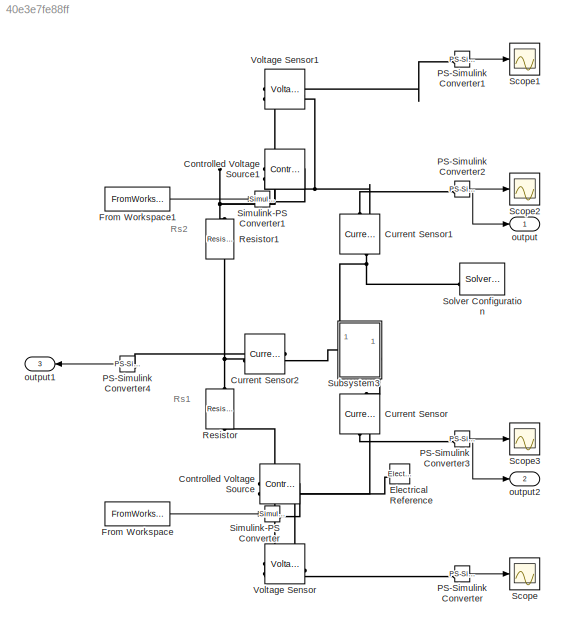
MODEL slx_40e3e7fe88ff
KIND model
CONFIG AbsTol = auto
CONFIG EnableMultiTasking = off
CONFIG FixedStep = auto
CONFIG MaxStep = auto
CONFIG MinStep = auto
CONFIG RelTol = 1e-3
CONFIG SampleTimeConstraint = Unconstrained
CONFIG SolverName = VariableStepAuto
CONFIG StartTime = 0.0
CONFIG StopTime = 3.33e-3
BLOCK [Reference] Controlled Voltage Source  REF=fl_lib/Electrical/Electrical Sources/Controlled Voltage
Source
  NameLocation = top
  SourceBlock = fl_lib/Electrical/Electrical Sources/Controlled Voltage\nSource
  SourceType = Controlled Voltage\nSource
BLOCK [Reference] Controlled Voltage Source1  REF=fl_lib/Electrical/Electrical Sources/Controlled Voltage
Source
  NameLocation = top
  SourceBlock = fl_lib/Electrical/Electrical Sources/Controlled Voltage\nSource
  SourceType = Controlled Voltage\nSource
BLOCK [Reference] Current Sensor  REF=fl_lib/Electrical/Electrical Sensors/Current Sensor
  NameLocation = left
  SourceBlock = fl_lib/Electrical/Electrical Sensors/Current Sensor
  SourceType = Current Sensor
BLOCK [Reference] Current Sensor1  REF=fl_lib/Electrical/Electrical Sensors/Current Sensor
  NameLocation = right
  SourceBlock = fl_lib/Electrical/Electrical Sensors/Current Sensor
  SourceType = Current Sensor
BLOCK [Reference] Current Sensor2  REF=fl_lib/Electrical/Electrical Sensors/Current Sensor
  NameLocation = top
  SourceBlock = fl_lib/Electrical/Electrical Sensors/Current Sensor
  SourceType = Current Sensor
BLOCK [Reference] Electrical Reference  REF=fl_lib/Electrical/Electrical Elements/Electrical Reference
  NameLocation = top
  SourceBlock = fl_lib/Electrical/Electrical Elements/Electrical Reference
  SourceType = Electrical Reference
BLOCK [FromWorkspace] From Workspace
  VariableName = Vbe
BLOCK [FromWorkspace] From Workspace1
  VariableName = Vbc
BLOCK [Reference] PS-Simulink Converter  REF=nesl_utility/PS-Simulink
Converter
  SourceBlock = nesl_utility/PS-Simulink\nConverter
  SourceType = PS-Simulink\nConverter
BLOCK [Reference] PS-Simulink Converter1  REF=nesl_utility/PS-Simulink
Converter
  SourceBlock = nesl_utility/PS-Simulink\nConverter
  SourceType = PS-Simulink\nConverter
BLOCK [Reference] PS-Simulink Converter2  REF=nesl_utility/PS-Simulink
Converter
  SourceBlock = nesl_utility/PS-Simulink\nConverter
  SourceType = PS-Simulink\nConverter
BLOCK [Reference] PS-Simulink Converter3  REF=nesl_utility/PS-Simulink
Converter
  SourceBlock = nesl_utility/PS-Simulink\nConverter
  SourceType = PS-Simulink\nConverter
BLOCK [Reference] PS-Simulink Converter4  REF=nesl_utility/PS-Simulink
Converter
  NameLocation = top
  SourceBlock = nesl_utility/PS-Simulink\nConverter
  SourceType = PS-Simulink\nConverter
BLOCK [Reference] Resistor  REF=fl_lib/Electrical/Electrical Elements/Resistor
  NameLocation = left
  SourceBlock = fl_lib/Electrical/Electrical Elements/Resistor
  SourceType = Resistor
BLOCK [Reference] Resistor1  REF=fl_lib/Electrical/Electrical Elements/Resistor
  NameLocation = right
  SourceBlock = fl_lib/Electrical/Electrical Elements/Resistor
  SourceType = Resistor
BLOCK [Scope] Scope
  Floating = off
  NumInputPorts = 1
  ScopeSpecificationString = Simulink.scopes.TimeScopeBlockCfg('CurrentConfiguration', extmgr.ConfigurationSet(extmgr.Configuration('Core','General UI',true),extmgr.Configuration('Core','Source UI',true),extmgr.Configuration('Sources','WiredSimulink',true),extmgr.Configuration('Visuals','Time Domain',true,'SerializedDisplays',{struct('MinYLimReal','-0.83302','MaxYLimReal','-0.72785','YLabelReal','','MinYLimMag','0.00000','Max...<+1692ch>
BLOCK [Scope] Scope1
  Floating = off
  NumInputPorts = 1
  ScopeSpecificationString = Simulink.scopes.TimeScopeBlockCfg('CurrentConfiguration', extmgr.ConfigurationSet(extmgr.Configuration('Core','General UI',true),extmgr.Configuration('Core','Source UI',true),extmgr.Configuration('Sources','WiredSimulink',true,'DataLoggingVariableName','ScopeData1'),extmgr.Configuration('Visuals','Time Domain',true,'SerializedDisplays',{struct('MinYLimReal','-10.97998','MaxYLimReal','-8.97998','YL...<+1436ch>
BLOCK [Scope] Scope2
  Floating = off
  NumInputPorts = 1
  ScopeSpecificationString = Simulink.scopes.TimeScopeBlockCfg('CurrentConfiguration', extmgr.ConfigurationSet(extmgr.Configuration('Core','General UI',true),extmgr.Configuration('Core','Source UI',true),extmgr.Configuration('Sources','WiredSimulink',true,'DataLoggingVariableName','ScopeData2'),extmgr.Configuration('Visuals','Time Domain',true,'SerializedDisplays',{struct('MinYLimReal','-45.70413','MaxYLimReal','411.33719','Y...<+1450ch>
BLOCK [Scope] Scope3
  Floating = off
  NumInputPorts = 1
  ScopeSpecificationString = Simulink.scopes.TimeScopeBlockCfg('CurrentConfiguration', extmgr.ConfigurationSet(extmgr.Configuration('Core','General UI',true),extmgr.Configuration('Core','Source UI',true),extmgr.Configuration('Sources','WiredSimulink',true,'DataLoggingVariableName','ScopeData3'),extmgr.Configuration('Visuals','Time Domain',true,'SerializedDisplays',{struct('MinYLimReal','-1.10691','MaxYLimReal','9.96223','YLab...<+1440ch>
BLOCK [Reference] Simulink-PS Converter  REF=nesl_utility/Simulink-PS
Converter
  SourceBlock = nesl_utility/Simulink-PS\nConverter
  SourceType = Simulink-PS\nConverter
BLOCK [Reference] Simulink-PS Converter1  REF=nesl_utility/Simulink-PS
Converter
  SourceBlock = nesl_utility/Simulink-PS\nConverter
  SourceType = Simulink-PS\nConverter
BLOCK [Reference] Solver Configuration  REF=nesl_utility/Solver
Configuration
  SourceBlock = nesl_utility/Solver\nConfiguration
  SourceType = Solver\nConfiguration
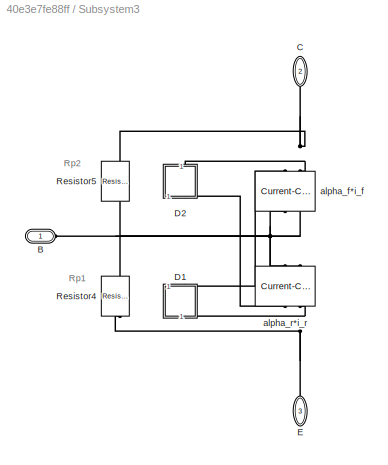
BLOCK [SubSystem] Subsystem3
  PortSchema = {"entries":[{"content":{"sides":[{"content":{"connectorIds":["LConn1"]},"type":"ConnectorPlacement.EquallySpacedRectSide","uuid":"e7d2ad01-b729-4278-a2af-615928332c77"},{"content":{"side":"RIGHT"},"type":"ConnectorPlacement.EquallySpacedRectSide","uuid":"6c8f5083-1d74-476b-8fc8-74f7e6a90163"},{"content":{"connectorIds":["LConn2"],"side":"TOP"},"type":"ConnectorPlacement.EquallySpacedRectSide","uui...<+379ch>
BLOCK [PMIOPort] Subsystem3/B
  Side = Left
BLOCK [PMIOPort] Subsystem3/C
  NameLocation = left
  Port = 2
  Side = Left
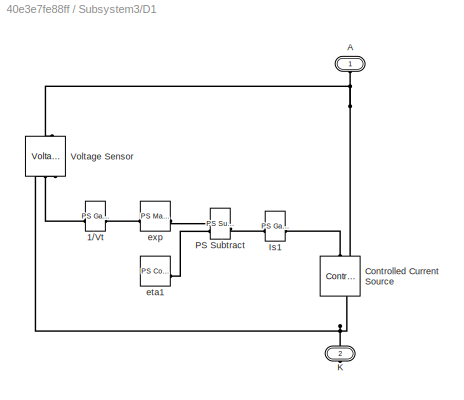
BLOCK [SubSystem] Subsystem3/D1
  NameLocation = left
BLOCK [Reference] Subsystem3/D1/1//Vt  REF=fl_lib/Physical Signals/Functions/PS Gain
  SourceBlock = fl_lib/Physical Signals/Functions/PS Gain
  SourceType = PS Gain
BLOCK [PMIOPort] Subsystem3/D1/A
  NameLocation = right
  Side = Left
BLOCK [Reference] Subsystem3/D1/Controlled Current Source  REF=fl_lib/Electrical/Electrical Sources/Controlled Current
Source
  NameLocation = right
  SourceBlock = fl_lib/Electrical/Electrical Sources/Controlled Current\nSource
  SourceType = Controlled Current\nSource
BLOCK [Reference] Subsystem3/D1/Is1  REF=fl_lib/Physical Signals/Functions/PS Gain
  SourceBlock = fl_lib/Physical Signals/Functions/PS Gain
  SourceType = PS Gain
BLOCK [PMIOPort] Subsystem3/D1/K
  NameLocation = right
  Port = 2
  Side = Right
BLOCK [Reference] Subsystem3/D1/PS Subtract  REF=fl_lib/Physical Signals/Functions/PS Subtract
  NameLocation = top
  SourceBlock = fl_lib/Physical Signals/Functions/PS Subtract
  SourceType = PS Subtract
BLOCK [Reference] Subsystem3/D1/Voltage Sensor  REF=fl_lib/Electrical/Electrical Sensors/Voltage Sensor
  NameLocation = right
  SourceBlock = fl_lib/Electrical/Electrical Sensors/Voltage Sensor
  SourceType = Voltage Sensor
BLOCK [Reference] Subsystem3/D1/eta1  REF=fl_lib/Physical Signals/Sources/PS Constant
  SourceBlock = fl_lib/Physical Signals/Sources/PS Constant
  SourceType = PS Constant
BLOCK [Reference] Subsystem3/D1/exp  REF=fl_lib/Physical Signals/Functions/PS Math Function
  SourceBlock = fl_lib/Physical Signals/Functions/PS Math Function
  SourceType = PS Math Function
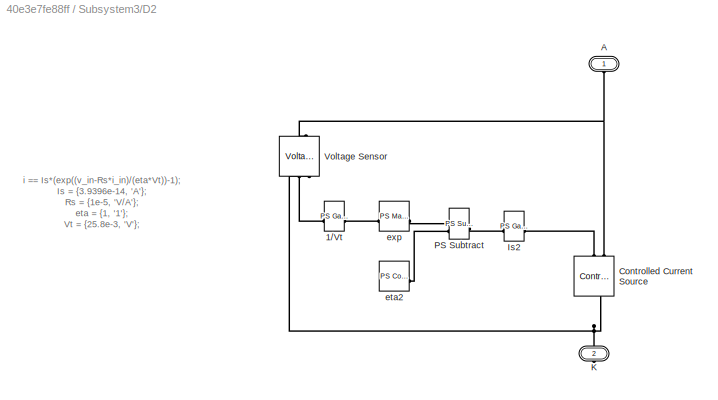
BLOCK [SubSystem] Subsystem3/D2
  NameLocation = left
BLOCK [Reference] Subsystem3/D2/1//Vt  REF=fl_lib/Physical Signals/Functions/PS Gain
  SourceBlock = fl_lib/Physical Signals/Functions/PS Gain
  SourceType = PS Gain
BLOCK [PMIOPort] Subsystem3/D2/A
  NameLocation = right
  Side = Left
BLOCK [Reference] Subsystem3/D2/Controlled Current Source  REF=fl_lib/Electrical/Electrical Sources/Controlled Current
Source
  NameLocation = right
  SourceBlock = fl_lib/Electrical/Electrical Sources/Controlled Current\nSource
  SourceType = Controlled Current\nSource
BLOCK [Reference] Subsystem3/D2/Is2  REF=fl_lib/Physical Signals/Functions/PS Gain
  SourceBlock = fl_lib/Physical Signals/Functions/PS Gain
  SourceType = PS Gain
BLOCK [PMIOPort] Subsystem3/D2/K
  NameLocation = right
  Port = 2
  Side = Right
BLOCK [Reference] Subsystem3/D2/PS Subtract  REF=fl_lib/Physical Signals/Functions/PS Subtract
  NameLocation = top
  SourceBlock = fl_lib/Physical Signals/Functions/PS Subtract
  SourceType = PS Subtract
BLOCK [Reference] Subsystem3/D2/Voltage Sensor  REF=fl_lib/Electrical/Electrical Sensors/Voltage Sensor
  NameLocation = right
  SourceBlock = fl_lib/Electrical/Electrical Sensors/Voltage Sensor
  SourceType = Voltage Sensor
BLOCK [Reference] Subsystem3/D2/eta2  REF=fl_lib/Physical Signals/Sources/PS Constant
  SourceBlock = fl_lib/Physical Signals/Sources/PS Constant
  SourceType = PS Constant
BLOCK [Reference] Subsystem3/D2/exp  REF=fl_lib/Physical Signals/Functions/PS Math Function
  SourceBlock = fl_lib/Physical Signals/Functions/PS Math Function
  SourceType = PS Math Function
BLOCK [PMIOPort] Subsystem3/E
  NameLocation = right
  Port = 3
  Side = Right
BLOCK [Reference] Subsystem3/Resistor4  REF=fl_lib/Electrical/Electrical Elements/Resistor
  NameLocation = left
  SourceBlock = fl_lib/Electrical/Electrical Elements/Resistor
  SourceType = Resistor
BLOCK [Reference] Subsystem3/Resistor5  REF=fl_lib/Electrical/Electrical Elements/Resistor
  NameLocation = left
  SourceBlock = fl_lib/Electrical/Electrical Elements/Resistor
  SourceType = Resistor
BLOCK [Reference] Subsystem3/alpha_f*i_f  REF=fl_lib/Electrical/Electrical Sources/Current-Controlled
Current Source
  NameLocation = right
  SourceBlock = fl_lib/Electrical/Electrical Sources/Current-Controlled\nCurrent Source
  SourceType = Current-Controlled\nCurrent Source
BLOCK [Reference] Subsystem3/alpha_r*i_r  REF=fl_lib/Electrical/Electrical Sources/Current-Controlled
Current Source
  NameLocation = right
  SourceBlock = fl_lib/Electrical/Electrical Sources/Current-Controlled\nCurrent Source
  SourceType = Current-Controlled\nCurrent Source
BLOCK [Reference] Voltage Sensor  REF=fl_lib/Electrical/Electrical Sensors/Voltage Sensor
  NameLocation = top
  SourceBlock = fl_lib/Electrical/Electrical Sensors/Voltage Sensor
  SourceType = Voltage Sensor
BLOCK [Reference] Voltage Sensor1  REF=fl_lib/Electrical/Electrical Sensors/Voltage Sensor
  NameLocation = top
  SourceBlock = fl_lib/Electrical/Electrical Sensors/Voltage Sensor
  SourceType = Voltage Sensor
BLOCK [Outport] output
  IconDisplay = Signal name
  SignalName = Ibc
BLOCK [Outport] output1
  IconDisplay = Signal name
  NameLocation = top
  Port = 3
  SignalName = Ib
BLOCK [Outport] output2
  IconDisplay = Signal name
  Port = 2
  SignalName = Ibe
ANNOTATION (root): Rs1
ANNOTATION (root): Rs2
ANNOTATION Subsystem3: Rp1
ANNOTATION Subsystem3: Rp2
ANNOTATION Subsystem3/D2: i == Is*(exp((v_in-Rs*i_in)/(eta*Vt))-1); Is = {3.9396e-14, 'A' }; Rs = {1e-5, 'V/A' }; eta = {1, '1' }; Vt = {25.8e-3, 'V' };
LINE From Workspace1:1 -> Simulink-PS Converter1:1
LINE From Workspace:1 -> Simulink-PS Converter:1
LINE PS-Simulink Converter1:1 -> Scope1:1
NET PS-Simulink Converter2:1 -> Scope2:1, output:1
NET PS-Simulink Converter3:1 -> Scope3:1, output2:1
LINE PS-Simulink Converter4:1 -> output1:1
LINE PS-Simulink Converter:1 -> Scope:1
PNET net1: Controlled Voltage Source1:LConn1 -- Resistor1:RConn1 -- Voltage Sensor1:LConn1
PLINE Controlled Voltage Source1:RConn1 -- Simulink-PS Converter1:RConn1
PNET net2: Controlled Voltage Source1:RConn2 -- Current Sensor1:RConn2 -- Voltage Sensor1:RConn2
PNET net3: Controlled Voltage Source:LConn1 -- Resistor:RConn1 -- Voltage Sensor:LConn1
PLINE Controlled Voltage Source:RConn1 -- Simulink-PS Converter:RConn1
PNET net4: Controlled Voltage Source:RConn2 -- Current Sensor:RConn2 -- Electrical Reference:LConn1 -- Voltage Sensor:RConn2
PNET net5: Current Sensor1:LConn1 -- Solver Configuration:RConn1 -- Subsystem3:LConn2
PLINE Current Sensor1:RConn1 -- PS-Simulink Converter2:LConn1
PLINE Current Sensor2:LConn1 -- Subsystem3:LConn1
PLINE Current Sensor2:RConn1 -- PS-Simulink Converter4:LConn1
PNET net6: Current Sensor2:RConn2 -- Resistor1:LConn1 -- Resistor:LConn1
PLINE Current Sensor:LConn1 -- Subsystem3:RConn1
PLINE Current Sensor:RConn1 -- PS-Simulink Converter3:LConn1
PLINE PS-Simulink Converter1:LConn1 -- Voltage Sensor1:RConn1
PLINE PS-Simulink Converter:LConn1 -- Voltage Sensor:RConn1
PNET net7: Subsystem3/B:RConn1 -- Subsystem3/Resistor4:LConn1 -- Subsystem3/Resistor5:RConn1 -- Subsystem3/alpha_f*i_f:LConn1 -- Subsystem3/alpha_f*i_f:LConn2 -- Subsystem3/alpha_r*i_r:LConn1 -- Subsystem3/alpha_r*i_r:LConn2
PNET net8: Subsystem3/C:RConn1 -- Subsystem3/D2:RConn1 -- Subsystem3/Resistor5:LConn1 -- Subsystem3/alpha_f*i_f:RConn2
PLINE Subsystem3/D1/1//Vt:LConn1 -- Subsystem3/D1/Voltage Sensor:RConn1
PLINE Subsystem3/D1/1//Vt:RConn1 -- Subsystem3/D1/exp:LConn1
PNET net9: Subsystem3/D1/A:RConn1 -- Subsystem3/D1/Controlled Current Source:RConn2 -- Subsystem3/D1/Voltage Sensor:LConn1
PNET net10: Subsystem3/D1/Controlled Current Source:LConn1 -- Subsystem3/D1/K:RConn1 -- Subsystem3/D1/Voltage Sensor:RConn2
PLINE Subsystem3/D1/Controlled Current Source:RConn1 -- Subsystem3/D1/Is1:RConn1
PLINE Subsystem3/D1/Is1:LConn1 -- Subsystem3/D1/PS Subtract:RConn1
PLINE Subsystem3/D1/PS Subtract:LConn1 -- Subsystem3/D1/exp:RConn1
PLINE Subsystem3/D1/PS Subtract:LConn2 -- Subsystem3/D1/eta1:RConn1
PLINE Subsystem3/D1:LConn1 -- Subsystem3/alpha_f*i_f:RConn1
PNET net11: Subsystem3/D1:RConn1 -- Subsystem3/E:RConn1 -- Subsystem3/Resistor4:RConn1 -- Subsystem3/alpha_r*i_r:RConn2
PLINE Subsystem3/D2/1//Vt:LConn1 -- Subsystem3/D2/Voltage Sensor:RConn1
PLINE Subsystem3/D2/1//Vt:RConn1 -- Subsystem3/D2/exp:LConn1
PNET net12: Subsystem3/D2/A:RConn1 -- Subsystem3/D2/Controlled Current Source:RConn2 -- Subsystem3/D2/Voltage Sensor:LConn1
PNET net13: Subsystem3/D2/Controlled Current Source:LConn1 -- Subsystem3/D2/K:RConn1 -- Subsystem3/D2/Voltage Sensor:RConn2
PLINE Subsystem3/D2/Controlled Current Source:RConn1 -- Subsystem3/D2/Is2:RConn1
PLINE Subsystem3/D2/Is2:LConn1 -- Subsystem3/D2/PS Subtract:RConn1
PLINE Subsystem3/D2/PS Subtract:LConn1 -- Subsystem3/D2/exp:RConn1
PLINE Subsystem3/D2/PS Subtract:LConn2 -- Subsystem3/D2/eta2:RConn1
PLINE Subsystem3/D2:LConn1 -- Subsystem3/alpha_r*i_r:RConn1
note: NET lines group one-source signal fan-out (src -> all destinations, sorted); 1:1 wires keep LINE; PNET lines group multi-terminal physical nets as a canonical sorted terminal list (undirected conserving connections); 2-terminal nets keep the pairwise PLINE form
